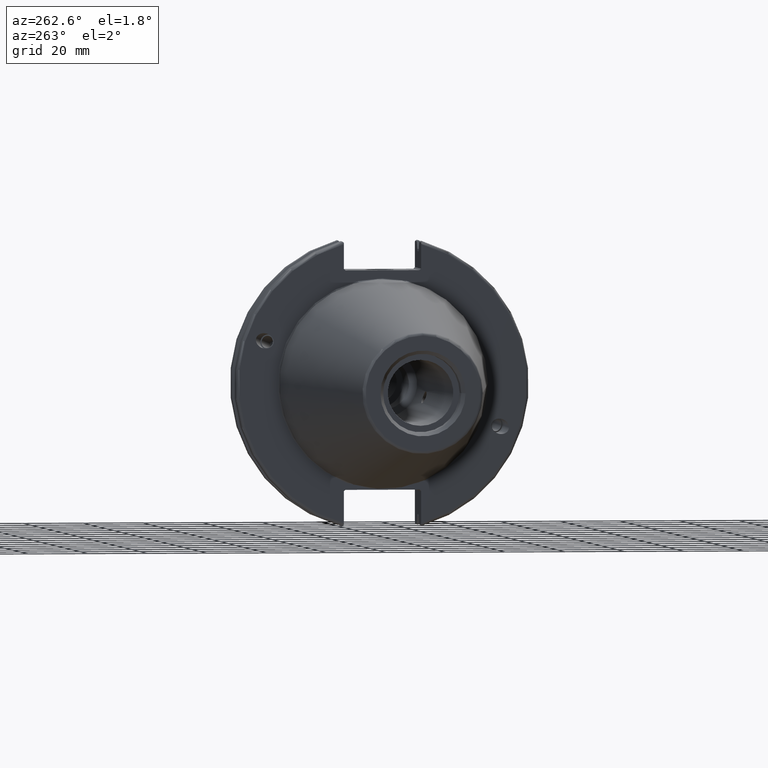
[diagram: clean part render]
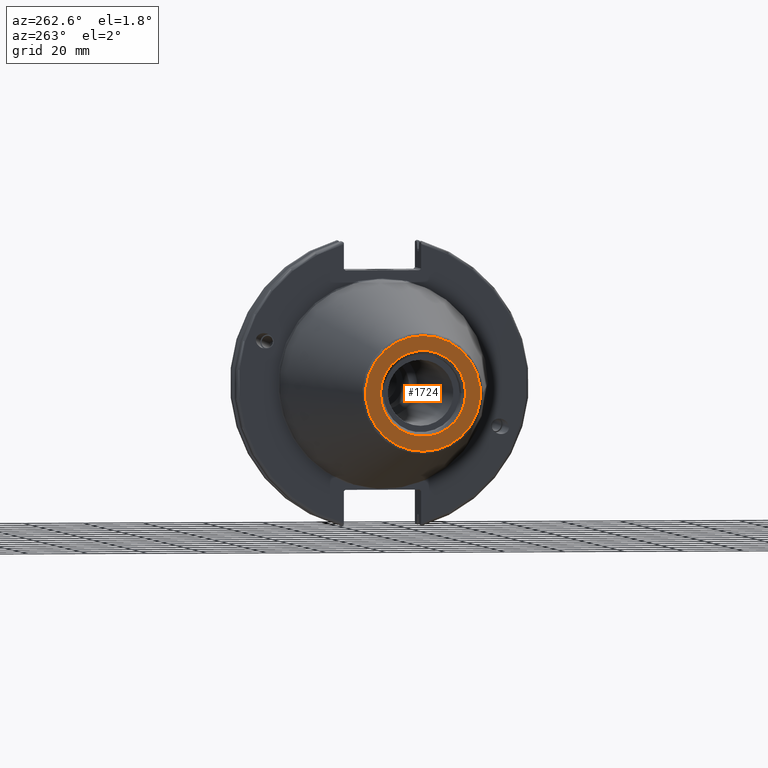
[diagram: same view with one face highlighted and labeled with its STEP entity id]
A machine part, auxiliary view. The second image highlights one B-rep face of the part: STEP entity #1724.
In plain terms, the highlighted planar face has unit normal (-1, 0, 0).
Its self-contained STEP definition (entity closure, byte-faithful):
#121=FACE_BOUND('',#345,.T.);
#142=PLANE('',#1959);
#227=FACE_OUTER_BOUND('',#344,.T.);
#344=EDGE_LOOP('',(#1483));
#345=EDGE_LOOP('',(#1484));
#658=CIRCLE('',#1958,19.2435889303637);
#659=CIRCLE('',#1960,14.2875);
#829=VERTEX_POINT('',#3192);
#830=VERTEX_POINT('',#3196);
#1062=EDGE_CURVE('',#829,#829,#658,.T.);
#1063=EDGE_CURVE('',#830,#830,#659,.T.);
#1483=ORIENTED_EDGE('',*,*,#1062,.F.);
#1484=ORIENTED_EDGE('',*,*,#1063,.T.);
#1724=ADVANCED_FACE('',(#227,#121),#142,.T.);
#1958=AXIS2_PLACEMENT_3D('',#3194,#2442,#2443);
#1959=AXIS2_PLACEMENT_3D('',#3195,#2444,#2445);
#1960=AXIS2_PLACEMENT_3D('',#3197,#2446,#2447);
#2442=DIRECTION('center_axis',(1.,0.,0.));
#2443=DIRECTION('ref_axis',(0.,-1.,1.83697019872103E-16));
#2444=DIRECTION('center_axis',(-1.,0.,0.));
#2445=DIRECTION('ref_axis',(0.,0.,1.));
#2446=DIRECTION('center_axis',(1.,0.,0.));
#2447=DIRECTION('ref_axis',(0.,0.,-1.));
#3192=CARTESIAN_POINT('',(-101.6,-2.35665995876774E-15,19.2435889303637));
#3194=CARTESIAN_POINT('Origin',(-101.6,0.,0.));
#3195=CARTESIAN_POINT('Origin',(-101.6,20.1083333333333,0.));
#3196=CARTESIAN_POINT('',(-101.6,-14.2875,-1.74971411428178E-15));
#3197=CARTESIAN_POINT('Origin',(-101.6,0.,0.));